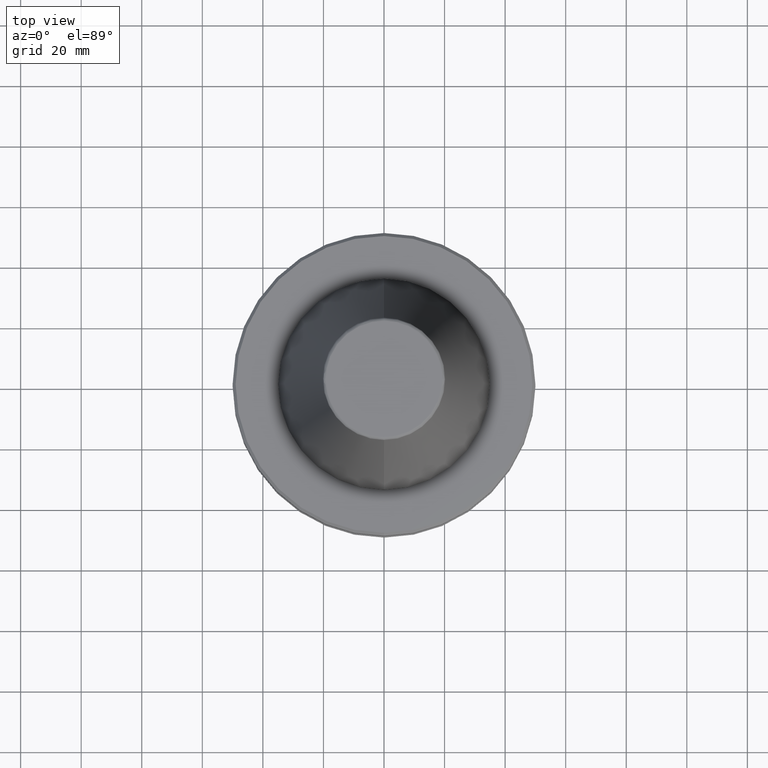
[diagram: clean part render]
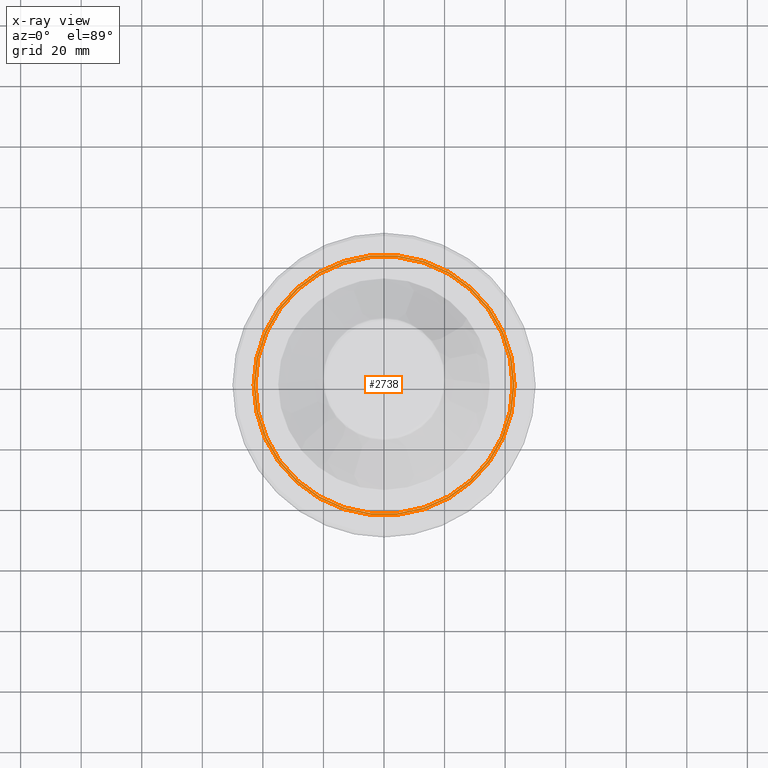
[diagram: x-ray — body ghosted, one internal face saturated and labeled with its STEP entity id]
A machine part, top view, then the same camera in x-ray: the body is ghosted and one INTERNAL B-rep face — a face not visible from any outside direction — is saturated and labeled: STEP entity #2738.
In plain terms, the highlighted planar face has unit normal (0, 0, 1).
Its self-contained STEP definition (entity closure, byte-faithful):
#135 = EDGE_LOOP ( 'NONE', ( #641, #1178 ) ) ;
#217 = CIRCLE ( 'NONE', #2351, 43.07217782649103600 ) ;
#218 = VERTEX_POINT ( 'NONE', #1924 ) ;
#263 = EDGE_CURVE ( 'NONE', #978, #2370, #217, .T. ) ;
#307 = DIRECTION ( 'NONE',  ( 0.0000000000000000000, 0.0000000000000000000, 1.000000000000000000 ) ) ;
#465 = FACE_OUTER_BOUND ( 'NONE', #135, .T. ) ;
#641 = ORIENTED_EDGE ( 'NONE', *, *, #263, .F. ) ;
#676 = CARTESIAN_POINT ( 'NONE',  ( 0.0000000000000000000, 0.0000000000000000000, -19.70000000000001000 ) ) ;
#862 = DIRECTION ( 'NONE',  ( 1.000000000000000000, 0.0000000000000000000, 0.0000000000000000000 ) ) ;
#978 = VERTEX_POINT ( 'NONE', #2585 ) ;
#989 = DIRECTION ( 'NONE',  ( 1.000000000000000000, 0.0000000000000000000, -0.0000000000000000000 ) ) ;
#990 = DIRECTION ( 'NONE',  ( 0.0000000000000000000, 0.0000000000000000000, 1.000000000000000000 ) ) ;
#995 = PLANE ( 'NONE',  #2413 ) ;
#1008 = CARTESIAN_POINT ( 'NONE',  ( 0.0000000000000000000, 43.07217782649103600, -19.70000000000000300 ) ) ;
#1100 = CARTESIAN_POINT ( 'NONE',  ( 0.0000000000000000000, 0.0000000000000000000, -19.70000000000001000 ) ) ;
#1178 = ORIENTED_EDGE ( 'NONE', *, *, #1345, .F. ) ;
#1211 = CIRCLE ( 'NONE', #1618, 42.50000000000000000 ) ;
#1345 = EDGE_CURVE ( 'NONE', #2370, #978, #1348, .T. ) ;
#1348 = CIRCLE ( 'NONE', #1637, 43.07217782649103600 ) ;
#1369 = DIRECTION ( 'NONE',  ( 0.0000000000000000000, 0.0000000000000000000, 1.000000000000000000 ) ) ;
#1387 = EDGE_CURVE ( 'NONE', #218, #1707, #1211, .T. ) ;
#1475 = DIRECTION ( 'NONE',  ( 1.000000000000000000, 0.0000000000000000000, 0.0000000000000000000 ) ) ;
#1479 = DIRECTION ( 'NONE',  ( -0.0000000000000000000, -0.0000000000000000000, -1.000000000000000000 ) ) ;
#1481 = CARTESIAN_POINT ( 'NONE',  ( 0.0000000000000000000, 0.0000000000000000000, -19.70000000000001000 ) ) ;
#1484 = DIRECTION ( 'NONE',  ( 1.000000000000000000, 0.0000000000000000000, 0.0000000000000000000 ) ) ;
#1530 = CARTESIAN_POINT ( 'NONE',  ( 0.0000000000000000000, 0.0000000000000000000, -19.70000000000001000 ) ) ;
#1557 = CARTESIAN_POINT ( 'NONE',  ( -43.07217782649103600, 5.699027233244276000E-015, -19.70000000000001000 ) ) ;
#1618 = AXIS2_PLACEMENT_3D ( 'NONE', #676, #2240, #862 ) ;
#1637 = AXIS2_PLACEMENT_3D ( 'NONE', #1530, #307, #1757 ) ;
#1647 = CIRCLE ( 'NONE', #2322, 42.50000000000000000 ) ;
#1707 = VERTEX_POINT ( 'NONE', #2613 ) ;
#1757 = DIRECTION ( 'NONE',  ( 1.000000000000000000, 0.0000000000000000000, 0.0000000000000000000 ) ) ;
#1793 = ORIENTED_EDGE ( 'NONE', *, *, #1387, .F. ) ;
#1819 = EDGE_LOOP ( 'NONE', ( #1793, #2426 ) ) ;
#1924 = CARTESIAN_POINT ( 'NONE',  ( 42.50000000000000000, 0.0000000000000000000, -19.70000000000001000 ) ) ;
#2047 = FACE_BOUND ( 'NONE', #1819, .T. ) ;
#2240 = DIRECTION ( 'NONE',  ( -0.0000000000000000000, -0.0000000000000000000, -1.000000000000000000 ) ) ;
#2322 = AXIS2_PLACEMENT_3D ( 'NONE', #1481, #1479, #1475 ) ;
#2351 = AXIS2_PLACEMENT_3D ( 'NONE', #1100, #1369, #1484 ) ;
#2370 = VERTEX_POINT ( 'NONE', #1557 ) ;
#2413 = AXIS2_PLACEMENT_3D ( 'NONE', #1008, #990, #989 ) ;
#2426 = ORIENTED_EDGE ( 'NONE', *, *, #2462, .F. ) ;
#2462 = EDGE_CURVE ( 'NONE', #1707, #218, #1647, .T. ) ;
#2585 = CARTESIAN_POINT ( 'NONE',  ( 43.07217782649103600, 0.0000000000000000000, -19.70000000000001000 ) ) ;
#2613 = CARTESIAN_POINT ( 'NONE',  ( -42.50000000000000000, 5.204748896376250900E-015, -19.70000000000001000 ) ) ;
#2738 = ADVANCED_FACE ( 'NONE', ( #465, #2047 ), #995, .F. ) ;